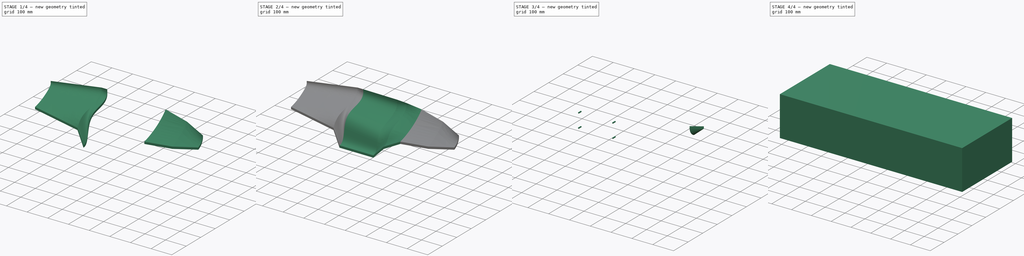
[diagram: build sequence overview — one tinted view per stage of 4, left to right]
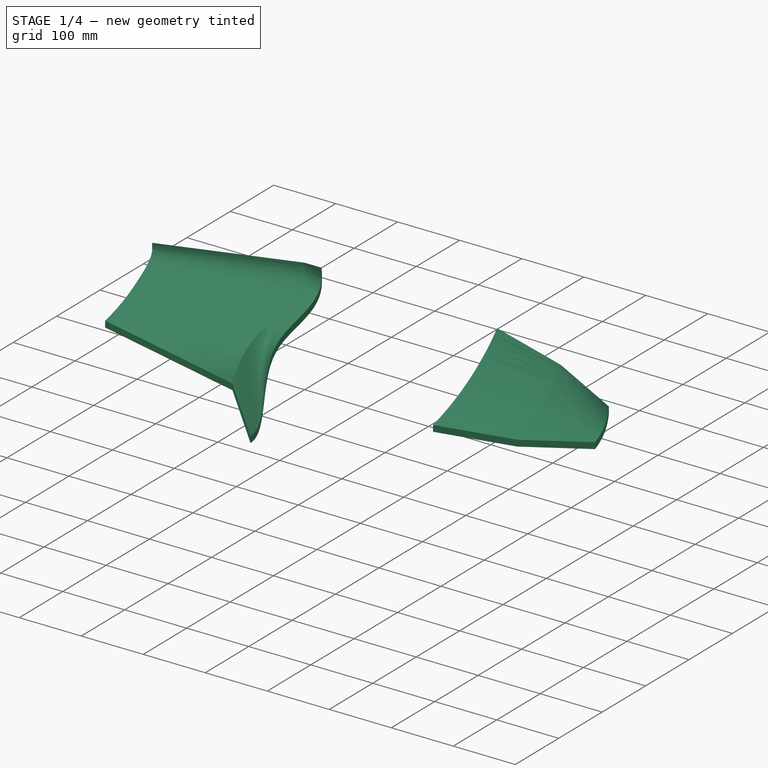
[diagram: stage 1 of 4 — iso view after this stage's code; geometry added in this stage tinted green]
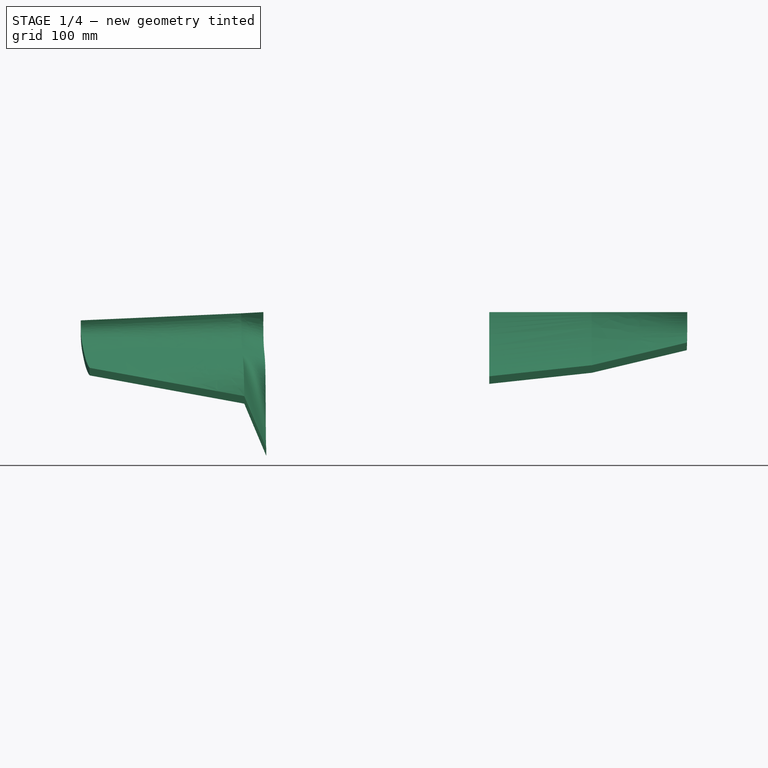
[diagram: stage 1 of 4 — front view after this stage's code; geometry added in this stage tinted green]
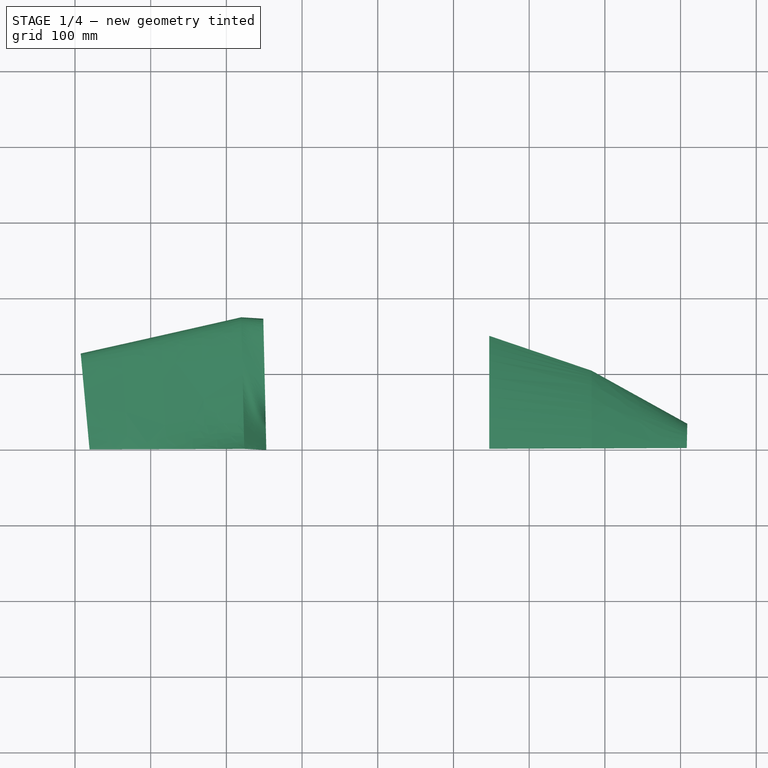
[diagram: stage 1 of 4 — top view after this stage's code; geometry added in this stage tinted green]
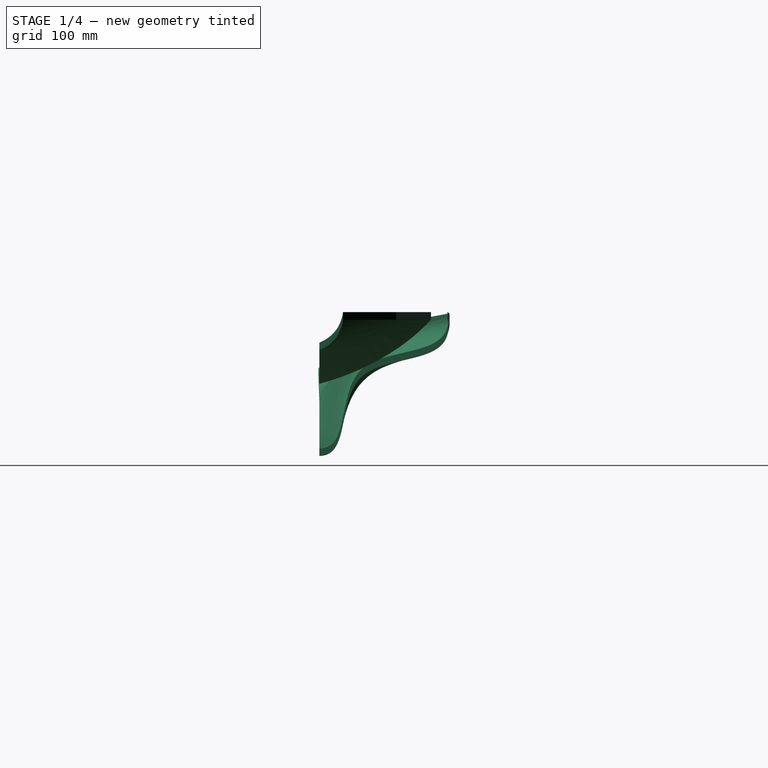
[diagram: stage 1 of 4 — right view after this stage's code; geometry added in this stage tinted green]
FCSTD DOCUMENT  (FreeCAD 0.19R24366 (Git))
Label: hulltest9
License: All rights reserved
LicenseURL: http://en.wikipedia.org/wiki/All_rights_reserved
objects: Sketcher::SketchObject×17, Part::FeaturePython×13, Part::Extrusion×12, Part::RuledSurface×9, App::FeaturePython×2, App::DocumentObjectGroup×2, Part::Mirroring×2, Image::ImagePlane×1, Part::Compound×1, PartDesign::Body×1, App::Part×1
note: 57 computed .brp shape members not serialized (recipe doc carries the construction recipe); baked Part::Feature solids carry a one-line shape summary decoded from their .brp

FEATURE [Part::Extrusion] Extrude005
  Base = -> Ruled_Surface004
  Dir = (0,0,-1)
  DirMode = 0
  FaceMakerClass = Part::FaceMakerBullseye
  LengthFwd = 10
  LengthRev = 0
  Solid = false
  Symmetric = false
FEATURE [Part::Extrusion] Extrude006
  Base = -> Ruled_Surface005
  Dir = (0,0,-1)
  DirMode = 0
  FaceMakerClass = Part::FaceMakerBullseye
  LengthFwd = 10
  LengthRev = 0
  Solid = false
  Symmetric = false
FEATURE [Part::Extrusion] Extrude007
  Base = -> Ruled_Surface006
  Dir = (0,0,-1)
  DirMode = 0
  FaceMakerClass = Part::FaceMakerBullseye
  LengthFwd = 10
  LengthRev = 0
  Solid = false
  Symmetric = false
FEATURE [Part::Extrusion] Extrude008
  Base = -> Ruled_Surface007
  Dir = (0,0,-1)
  DirMode = 0
  FaceMakerClass = Part::FaceMakerBullseye
  LengthFwd = 10
  LengthRev = 0
  Solid = false
  Symmetric = false
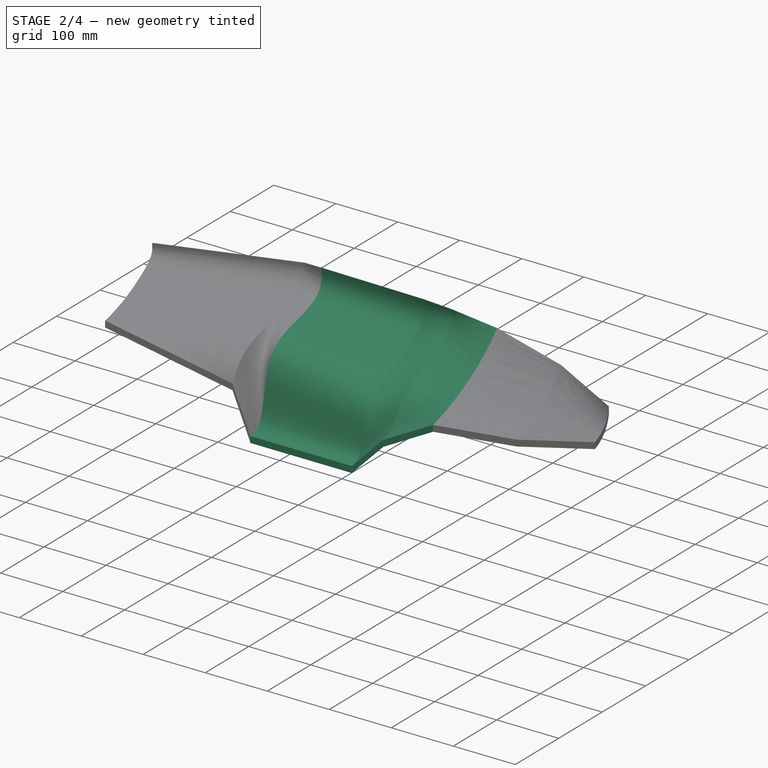
[diagram: stage 2 of 4 — iso view after this stage's code; geometry added in this stage tinted green]
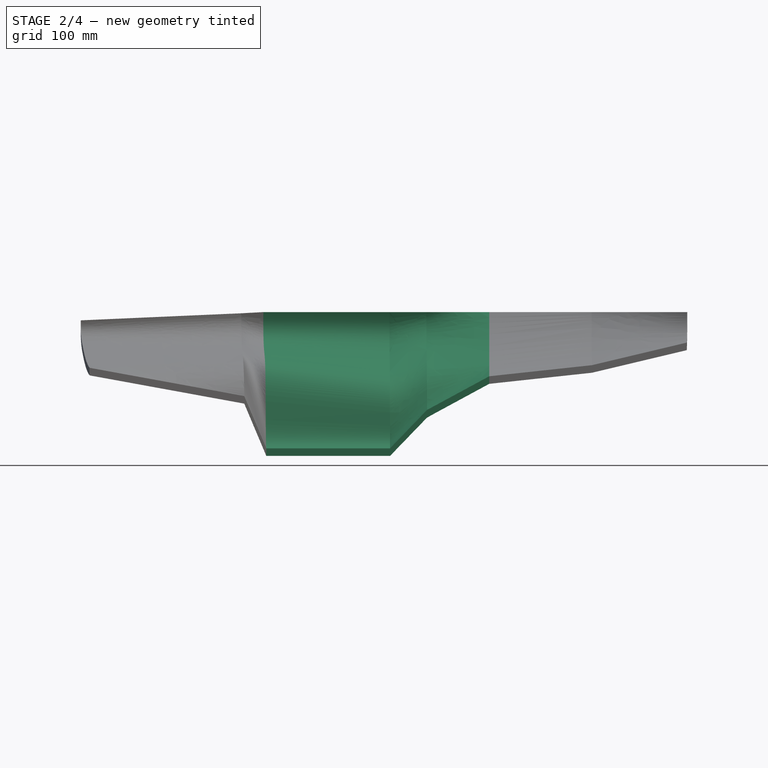
[diagram: stage 2 of 4 — front view after this stage's code; geometry added in this stage tinted green]
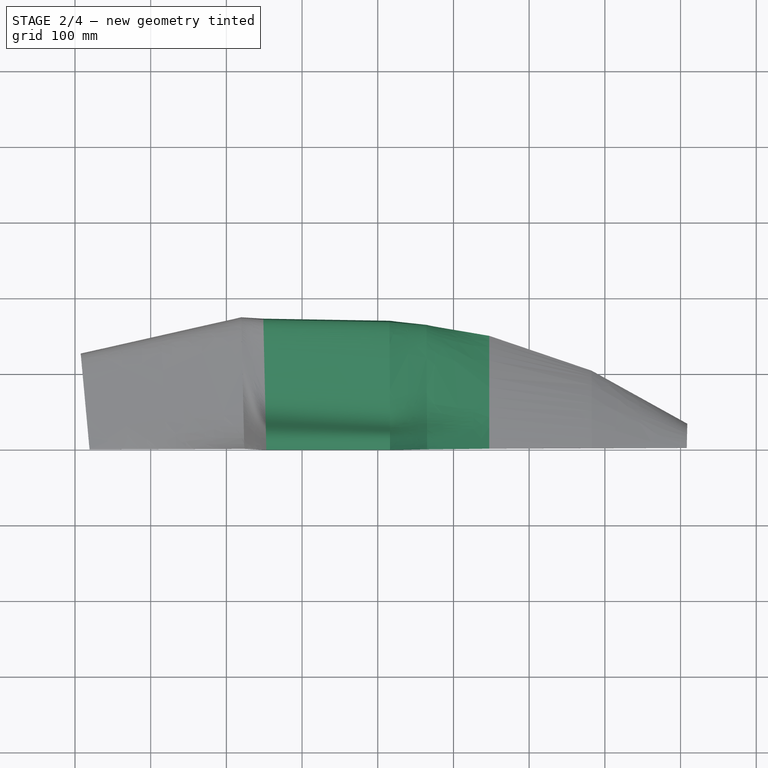
[diagram: stage 2 of 4 — top view after this stage's code; geometry added in this stage tinted green]
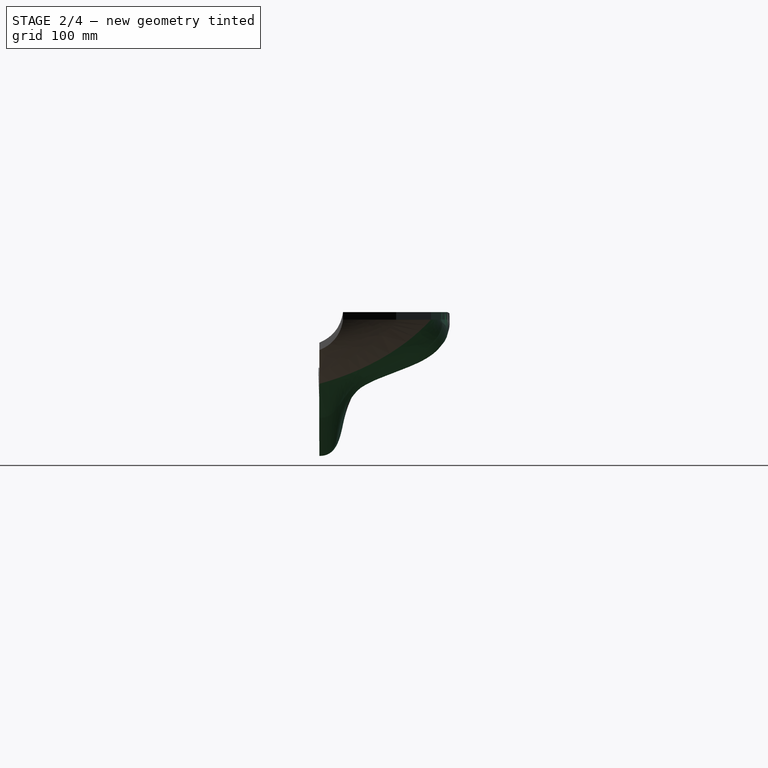
[diagram: stage 2 of 4 — right view after this stage's code; geometry added in this stage tinted green]
FEATURE [Sketcher::SketchObject] Sketch005  label="HullShapeVerticalStarboard"
  ExternalGeometry = -> [Sketch]
  FullyConstrained = false
  MapMode = 5
  Placement = pos=(0,-20,0) rot=(1,0,0;1.5708rad)
  sketch-geometry (23):
    g0: LineSegment StartX=556.206 StartY=4.4e-15 StartZ=0 EndX=556.206 EndY=-1.43051e-09 EndZ=0
    g1: LineSegment StartX=556.206 StartY=4.4e-15 StartZ=0 EndX=-306.723 EndY=-29.9514 EndZ=0
    g2: LineSegment StartX=-307.246 StartY=-80 StartZ=0 EndX=-107.499 EndY=-91.1171 EndZ=0
    g3: LineSegment StartX=-97.2983 StartY=-98.6422 StartZ=0 EndX=-72.0762 EndY=-166.629 EndZ=0
    g4: LineSegment StartX=-52.854 StartY=-180 StartZ=0 EndX=129.621 EndY=-180 EndZ=0
    g5: LineSegment StartX=141.45 StartY=-172.967 StartZ=0 EndX=181.223 EndY=-99.8143 EndZ=0
    g6: LineSegment StartX=194.826 StartY=-90.5596 StartZ=0 EndX=293.166 EndY=-78.5036 EndZ=0
    g7-g12: Circle x6 (B-spline internal-alignment scaffolding for g13; pole/knot coordinates omitted)
    g13: BSplineCurve PolesCount=6 KnotsCount=4 Degree=3 IsPeriodic=0
    g14-g17: GeomPoint x4 (B-spline internal-alignment scaffolding for g13; pole/knot coordinates omitted)
    g18: ArcOfCircle CenterX=-52.854 CenterY=-159.498 CenterZ=0 NormalX=0 NormalY=0 NormalZ=1 AngleXU=0 Radius=20.5024 StartAngle=3.49684 EndAngle=4.71239
    g19: ArcOfCircle CenterX=129.621 CenterY=-166.536 CenterZ=0 NormalX=0 NormalY=0 NormalZ=1 AngleXU=0 Radius=13.4644 StartAngle=4.71239 EndAngle=5.7852
    g20: ArcOfCircle CenterX=197.013 CenterY=-108.399 CenterZ=0 NormalX=0 NormalY=0 NormalZ=1 AngleXU=0 Radius=17.9734 StartAngle=1.69278 EndAngle=2.6436
    g21: ArcOfCircle CenterX=-108.142 CenterY=-102.665 CenterZ=0 NormalX=0 NormalY=0 NormalZ=1 AngleXU=0 Radius=11.5659 StartAngle=0.355247 EndAngle=1.5152
    g22: ArcOfCircle CenterX=-305.854 CenterY=-54.9875 CenterZ=0 NormalX=0 NormalY=0 NormalZ=1 AngleXU=0 Radius=25.0512 StartAngle=1.60549 EndAngle=4.65679
  constraints (20):
    c: Coincident(g0,g1)
    c: Coincident(g13,g6)
    c: Weight(g7) = 1
    c: Equal(g7, g8-g12) x5
    c: Coincident(g13,g0)
    c: InternalAlignment(g7-g12 -> g13) x6
    c: InternalAlignment(g14-g17 -> g13) x4
    c: Coincident(g-3,g1)
    c: Tangent(g3,g18) = -1.5708
    c: Tangent(g4,g18) = -1.5708
    c: DistanceY(g4,g-1) = 180
    c: Tangent(g4,g19) = -1.5708
    c: Tangent(g5,g19) = -1.5708
    c: Tangent(g5,g20) = 1.5708
    c: Tangent(g6,g20) = 1.5708
    c: Tangent(g2,g21) = 1.5708
    c: Tangent(g3,g21) = 1.5708
    c: Tangent(g2,g22) = -1.5708
    c: Tangent(g1,g22) = -1.5708
    c: DistanceY(g2,g-1) = 80
FEATURE [Part::FeaturePython] IsoCurve  # WARN: FeaturePython — macro-defined, semantics opaque (R4)
  Face = -> Extrude [Face4]
  Mode = 1
  NumberU = 19
  NumberV = 0
  Orientation = 0
  Parameter = 0
FEATURE [Part::FeaturePython] IsoCurve001  # WARN: FeaturePython — macro-defined, semantics opaque (R4)
  Face = -> Extrude [Face3]
  Mode = 1
  NumberU = 80
  NumberV = 0
  Orientation = 0
  Parameter = 0
FEATURE [Part::FeaturePython] Profile  # WARN: FeaturePython — macro-defined, semantics opaque (R4)
  Edge1 = -> Sketch [Edge2]
  Edge2 = -> Sketch [Edge1]
  MainAxis = (0,0,-1)
  Parameter1 = 0.359919
  Parameter2 = 603.435
FEATURE [Sketcher::SketchObject] Sketch006
  ExternalGeometry = -> [Sketch,Sketch003,Profile]
  FullyConstrained = false
  MapMode = 13
  Placement = pos=(-49.8638,112.818,-56.4242) rot=(0.586339,-0.572803,-0.572803;2.08096rad)
  Support = -> [Profile]
  sketch-geometry (9):
    g0-g4: Circle x5 (B-spline internal-alignment scaffolding for g5; pole/knot coordinates omitted)
    g5: BSplineCurve PolesCount=5 KnotsCount=3 Degree=3 IsPeriodic=0
    g6: GeomPoint X=112.739 Y=-123.576 Z=0
    g7: GeomPoint X=55.3327 Y=-17.7173 Z=0
    g8: GeomPoint X=-56.4242 Y=56.4242 Z=0
  constraints (8):
    c: Weight(g0) = 1
    c: Equal(g0, g1-g4) x4
    c: InternalAlignment(g0-g4 -> g5) x5
    c: InternalAlignment(g6,g5)
    c: InternalAlignment(g7,g5)
    c: InternalAlignment(g8,g5)
    c: Coincident(g5,g-4)
    c: Coincident(g-6,g5)
FEATURE [Part::FeaturePython] Profile001  # WARN: FeaturePython — macro-defined, semantics opaque (R4)
  Edge1 = -> Sketch [Edge2]
  Edge2 = -> Sketch [Edge1]
  MainAxis = (0,0,-1)
  Parameter1 = 0.5
  Parameter2 = 440
FEATURE [Part::FeaturePython] Profile002  # WARN: FeaturePython — macro-defined, semantics opaque (R4)
  Edge1 = -> Sketch [Edge2]
  Edge2 = -> Sketch [Edge1]
  MainAxis = (0,0,-1)
  Parameter1 = 0.55
  Parameter2 = 391
FEATURE [Part::FeaturePython] JoinCurve  # WARN: FeaturePython — macro-defined, semantics opaque (R4)
  Active = false
  ApproxTolerance = 0.001
  Continuity = 5
  CornerBreak = false
  DegreeMax = 5
  DegreeMin = 3
  Edges = -> [Sketch003]
  ForceClosed = false
  ForceContact = true
  Parametrization = 0
  Reverse = false
  Samples = 100
  StartOffset = 0
  Tolerance = 0.01
FEATURE [Sketcher::SketchObject] Sketch007
  ExternalGeometry = -> [Sketch,Sketch003,Profile001,JoinCurve]
  FullyConstrained = false
  MapMode = 13
  Placement = pos=(115.72,110.612,-55.3066) rot=(0.57904,-0.576504,-0.576504;2.09186rad)
  Support = -> [Profile001]
  sketch-geometry (9):
    g0-g4: Circle x5 (B-spline internal-alignment scaffolding for g5; pole/knot coordinates omitted)
    g5: BSplineCurve PolesCount=5 KnotsCount=3 Degree=3 IsPeriodic=0
    g6: GeomPoint X=110.455 Y=-124.728 Z=0
    g7: GeomPoint X=59.8835 Y=-37.9082 Z=0
    g8: GeomPoint X=-55.3066 Y=55.3066 Z=0
  constraints (8):
    c: Weight(g0) = 1
    c: Equal(g0, g1-g4) x4
    c: InternalAlignment(g0-g4 -> g5) x5
    c: InternalAlignment(g6,g5)
    c: InternalAlignment(g7,g5)
    c: InternalAlignment(g8,g5)
    c: Coincident(g-6,g5)
    c: Tangent(g5,g-4) = 1.5708
FEATURE [Part::FeaturePython] Profile003  # WARN: FeaturePython — macro-defined, semantics opaque (R4)
  Edge1 = -> Sketch [Edge2]
  Edge2 = -> Sketch [Edge1]
  MainAxis = (0,0,-1)
  Parameter1 = 0.822148
  Parameter2 = 173.36
FEATURE [Sketcher::SketchObject] Sketch009
  ExternalGeometry = -> [JoinCurve,Profile003]
  FullyConstrained = false
  MapMode = 5
  Placement = pos=(382.84,1.55253,0) rot=(0.578911,-0.576568,-0.576568;2.09206rad)
  Support = -> [Profile003]
  sketch-geometry (8):
    g0: GeomPoint X=1.34851 Y=-70.1648 Z=0
    g1-g4: Circle x4 (B-spline internal-alignment scaffolding for g5; pole/knot coordinates omitted)
    g5: BSplineCurve PolesCount=4 KnotsCount=2 Degree=3 IsPeriodic=0
    g6: GeomPoint X=1.34851 Y=-70.1648 Z=0
    g7: GeomPoint X=-99.9863 Y=-2.75e-14 Z=0
  constraints (9):
    c: Coincident(g5,g0)
    c: Weight(g1) = 1
    c: Equal(g1,g2)
    c: Equal(g1,g3)
    c: Equal(g1,g4)
    c: Coincident(g5,g-4)
    c: InternalAlignment(g1-g4 -> g5) x4
    c: InternalAlignment(g6,g5)
    c: InternalAlignment(g7,g5)
FEATURE [Sketcher::SketchObject] Sketch010
  ExternalGeometry = -> [Profile002,Sketch003]
  FullyConstrained = false
  MapMode = 5
  Placement = pos=(165.201,0.944997,0) rot=(0.579552,-0.576246,-0.576246;2.0911rad)
  Support = -> [Profile002]
  sketch-geometry (11):
    g0-g5: Circle x6 (B-spline internal-alignment scaffolding for g6; pole/knot coordinates omitted)
    g6: BSplineCurve PolesCount=6 KnotsCount=4 Degree=3 IsPeriodic=0
    g7-g10: GeomPoint x4 (B-spline internal-alignment scaffolding for g6; pole/knot coordinates omitted)
  constraints (6):
    c: Weight(g0) = 1
    c: Equal(g0, g1-g5) x5
    c: Coincident(g6,g-3)
    c: InternalAlignment(g0-g5 -> g6) x6
    c: InternalAlignment(g7-g10 -> g6) x4
    c: PointOnObject(g6,g-4)
FEATURE [Part::FeaturePython] Profile004  # WARN: FeaturePython — macro-defined, semantics opaque (R4)
  Edge1 = -> Sketch [Edge2]
  Edge2 = -> Sketch [Edge1]
  MainAxis = (0,0,-1)
  Parameter1 = 0.65
  Parameter2 = 309
FEATURE [Sketcher::SketchObject] Sketch011
  ExternalGeometry = -> [Profile004,Sketch003]
  FullyConstrained = false
  MapMode = 5
  Placement = pos=(247.206,0.0196502,0) rot=(0.577381,-0.577335,-0.577335;2.09435rad)
  Support = -> [Profile004]
  sketch-geometry (7):
    g0-g3: Circle x4 (B-spline internal-alignment scaffolding for g4; pole/knot coordinates omitted)
    g4: BSplineCurve PolesCount=4 KnotsCount=2 Degree=3 IsPeriodic=0
    g5: GeomPoint X=0.0192099 Y=-84.8161 Z=0
    g6: GeomPoint X=-147.538 Y=0 Z=0
  constraints (9):
    c: PointOnObject(g4,g-4)
    c: Weight(g0) = 1
    c: Equal(g0,g1)
    c: Equal(g0,g2)
    c: Equal(g0,g3)
    c: Coincident(g4,g-3)
    c: InternalAlignment(g0-g3 -> g4) x4
    c: InternalAlignment(g5,g4)
    c: InternalAlignment(g6,g4)
FEATURE [App::FeaturePython] Sweep_2_rails  # WARN: FeaturePython — macro-defined, semantics opaque (R4)
  Blending = 1
  Extend = false
  Parametrization = 0
  ProfileSamples = 20
  Profiles = -> [Sketch003,Sketch]
  RailSamples = 20
FEATURE [App::FeaturePython] Sweep_2_rails001  # WARN: FeaturePython — macro-defined, semantics opaque (R4)
  Blending = 1
  Extend = false
  Parametrization = 0
  ProfileSamples = 20
  Profiles = -> [Sketch003,Sketch]
  RailSamples = 20
FEATURE [Part::RuledSurface] Ruled_Surface
  Curve1 = -> Sketch [Edge2]
  Curve2 = -> JoinCurve [Edge1]
  Orientation = 0
FEATURE [Part::RuledSurface] Ruled_Surface001
  Curve1 = -> Sketch006 [Edge1]
  Curve2 = -> Sketch007 [Edge1]
  Orientation = 0
FEATURE [Part::RuledSurface] Ruled_Surface002
  Curve1 = -> Sketch007 [Edge1]
  Curve2 = -> Sketch010 [Edge1]
  Orientation = 0
FEATURE [Part::RuledSurface] Ruled_Surface003
  Curve1 = -> Ruled_Surface002 [Edge3]
  Curve2 = -> Sketch011 [Edge1]
  Orientation = 0
FEATURE [Part::RuledSurface] Ruled_Surface004
  Curve1 = -> Sketch009 [Edge1]
  Curve2 = -> Sketch011 [Edge1]
  Orientation = 0
FEATURE [Part::FeaturePython] Profile005  # WARN: FeaturePython — macro-defined, semantics opaque (R4)
  Edge1 = -> Sketch [Edge2]
  Edge2 = -> Sketch [Edge1]
  MainAxis = (0,0,-1)
  Parameter1 = 0.95
  Parameter2 = 48
FEATURE [Part::FeaturePython] Profile006  # WARN: FeaturePython — macro-defined, semantics opaque (R4)
  Edge1 = -> Sketch [Edge1]
  Edge2 = -> Sketch [Edge2]
  MainAxis = (0,0,-1)
  Parameter1 = 632.566
  Parameter2 = 0.337297
FEATURE [Part::FeaturePython] Profile007  # WARN: FeaturePython — macro-defined, semantics opaque (R4)
  Edge1 = -> Sketch [Edge2]
  MainAxis = (0,0,0)
  Parameter1 = 0
  Parameter2 = 0
FEATURE [Part::FeaturePython] Profile008  # WARN: FeaturePython — macro-defined, semantics opaque (R4)
  Edge1 = -> Sketch [Edge1]
  Edge2 = -> Sketch [Edge2]
  MainAxis = (0,0,-1)
  Parameter1 = 837.05
  Parameter2 = 0.0835447
FEATURE [Sketcher::SketchObject] Sketch012
  ExternalGeometry = -> [Sketch,JoinCurve]
  FullyConstrained = false
  MapMode = 5
  Placement = pos=(507.987,-10.5533,0) rot=(-0.569355,0.581306,0.581306;4.17676rad)
  Support = -> [Profile005]
  sketch-geometry (6):
    g0: Circle CenterX=-10.7284 CenterY=-40.3233 CenterZ=0 NormalX=0 NormalY=0 NormalZ=1 AngleXU=0 Radius=1
    g1: Circle CenterX=-37.7582 CenterY=-28.8952 CenterZ=0 NormalX=0 NormalY=0 NormalZ=1 AngleXU=0 Radius=1
    g2: Circle CenterX=-41.9941 CenterY=0 CenterZ=0 NormalX=0 NormalY=0 NormalZ=1 AngleXU=0 Radius=1
    g3: BSplineCurve PolesCount=3 KnotsCount=2 Degree=2 IsPeriodic=0
    g4: GeomPoint X=-10.7284 Y=-40.3233 Z=0
    g5: GeomPoint X=-41.9941 Y=0 Z=0
  constraints (9):
    c: Weight(g0) = 1
    c: Equal(g0,g1)
    c: Equal(g0,g2)
    c: InternalAlignment(g0,g3)
    c: InternalAlignment(g1,g3)
    c: InternalAlignment(g2,g3)
    c: InternalAlignment(g4,g3)
    c: InternalAlignment(g5,g3)
    c: PointOnObject(g3,g-1)
FEATURE [Part::RuledSurface] Ruled_Surface005
  Curve1 = -> Sketch012 [Edge1]
  Curve2 = -> Ruled_Surface004 [Edge1]
  Orientation = 0
FEATURE [Sketcher::SketchObject] Sketch013
  ExternalGeometry = -> [JoinCurve,Sketch,Ruled_Surface001]
  FullyConstrained = false
  MapMode = 5
  Placement = pos=(-76.3192,-1.75475,0) rot=(0.568502,0.581724,0.581724;2.10772rad)
  Support = -> [Profile006]
  sketch-geometry (9):
    g0-g4: Circle x5 (B-spline internal-alignment scaffolding for g5; pole/knot coordinates omitted)
    g5: BSplineCurve PolesCount=5 KnotsCount=3 Degree=3 IsPeriodic=0
    g6: GeomPoint X=2.01537 Y=-110.953 Z=0
    g7: GeomPoint X=104.241 Y=-55.5532 Z=0
    g8: GeomPoint X=173.72 Y=-1.6099 Z=0
  constraints (6):
    c: Weight(g0) = 1
    c: Equal(g0, g1-g4) x4
    c: InternalAlignment(g0-g4 -> g5) x5
    c: InternalAlignment(g6,g5)
    c: InternalAlignment(g7,g5)
    c: InternalAlignment(g8,g5)
FEATURE [Part::RuledSurface] Ruled_Surface006
  Curve1 = -> Ruled_Surface001 [Edge1]
  Curve2 = -> Sketch013 [Edge1]
  Orientation = 0
FEATURE [Sketcher::SketchObject] Sketch014
  ExternalGeometry = -> [Sketch,JoinCurve]
  FullyConstrained = false
  MapMode = 5
  Placement = pos=(-278.451,-25.8153,0) rot=(0.541784,0.594336,0.594336;2.14857rad)
  Support = -> [Profile008]
  sketch-geometry (9):
    g0-g4: Circle x5 (B-spline internal-alignment scaffolding for g5; pole/knot coordinates omitted)
    g5: BSplineCurve PolesCount=5 KnotsCount=3 Degree=3 IsPeriodic=0
    g6: GeomPoint X=24.8336 Y=-73.6262 Z=0
    g7: GeomPoint X=115.216 Y=-48.7604 Z=0
    g8: GeomPoint X=150.165 Y=-10.9394 Z=0
  constraints (6):
    c: Weight(g0) = 1
    c: Equal(g0, g1-g4) x4
    c: InternalAlignment(g0-g4 -> g5) x5
    c: InternalAlignment(g6,g5)
    c: InternalAlignment(g7,g5)
    c: InternalAlignment(g8,g5)
FEATURE [Part::RuledSurface] Ruled_Surface007
  Curve1 = -> Ruled_Surface006 [Edge3]
  Curve2 = -> Sketch014 [Edge1]
  Orientation = 0
FEATURE [App::DocumentObjectGroup] Group  label="HullShape"
  Group = -> [Ruled_Surface005,Ruled_Surface007,Ruled_Surface003]
FEATURE [Part::Extrusion] Extrude002
  Base = -> Ruled_Surface001
  Dir = (0,0,-1)
  DirMode = 0
  FaceMakerClass = Part::FaceMakerBullseye
  LengthFwd = 10
  LengthRev = 0
  Solid = false
  Symmetric = false
FEATURE [Part::Extrusion] Extrude003
  Base = -> Ruled_Surface002
  Dir = (0,0,-1)
  DirMode = 0
  FaceMakerClass = Part::FaceMakerBullseye
  LengthFwd = 10
  LengthRev = 0
  Solid = false
  Symmetric = false
FEATURE [Part::Extrusion] Extrude004
  Base = -> Ruled_Surface003
  Dir = (0,0,-1)
  DirMode = 0
  FaceMakerClass = Part::FaceMakerBullseye
  LengthFwd = 10
  LengthRev = 0
  Solid = false
  Symmetric = false
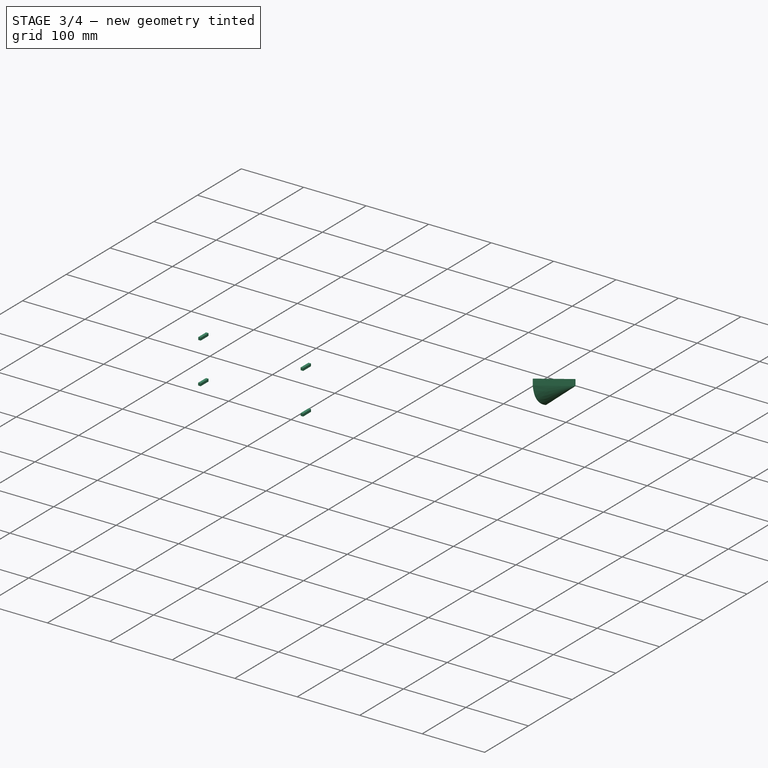
[diagram: stage 3 of 4 — iso view after this stage's code; geometry added in this stage tinted green]
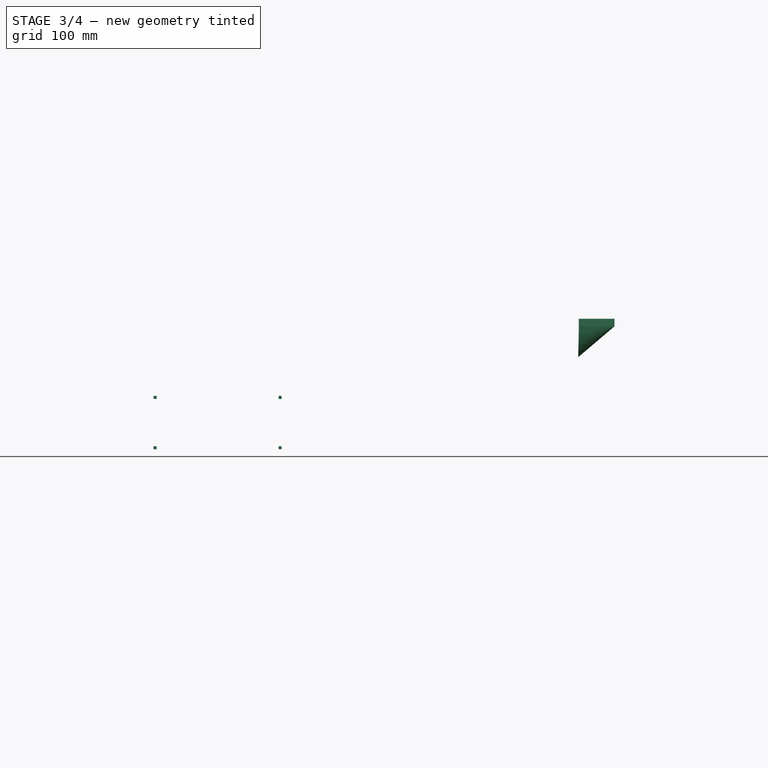
[diagram: stage 3 of 4 — front view after this stage's code; geometry added in this stage tinted green]
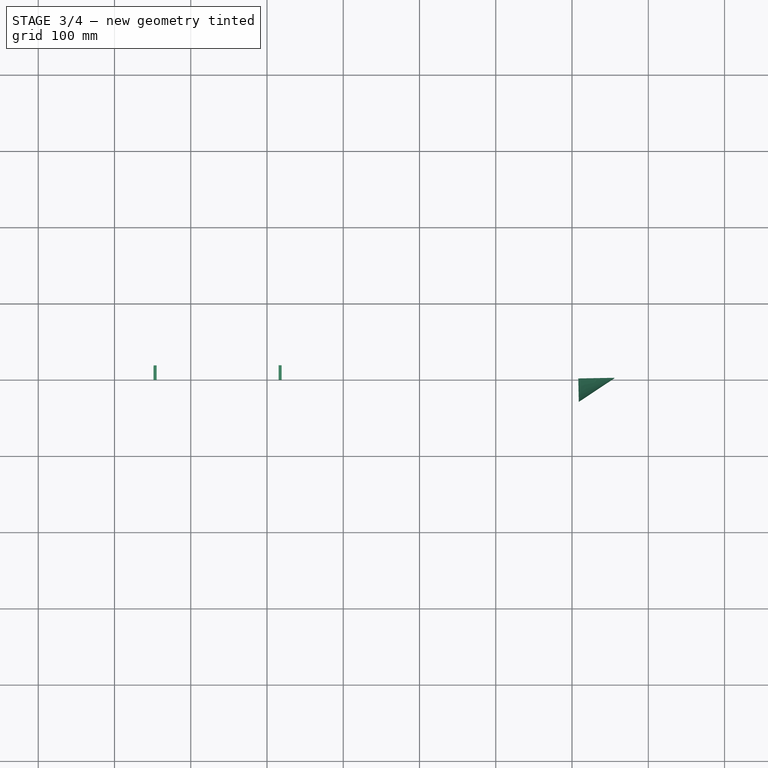
[diagram: stage 3 of 4 — top view after this stage's code; geometry added in this stage tinted green]
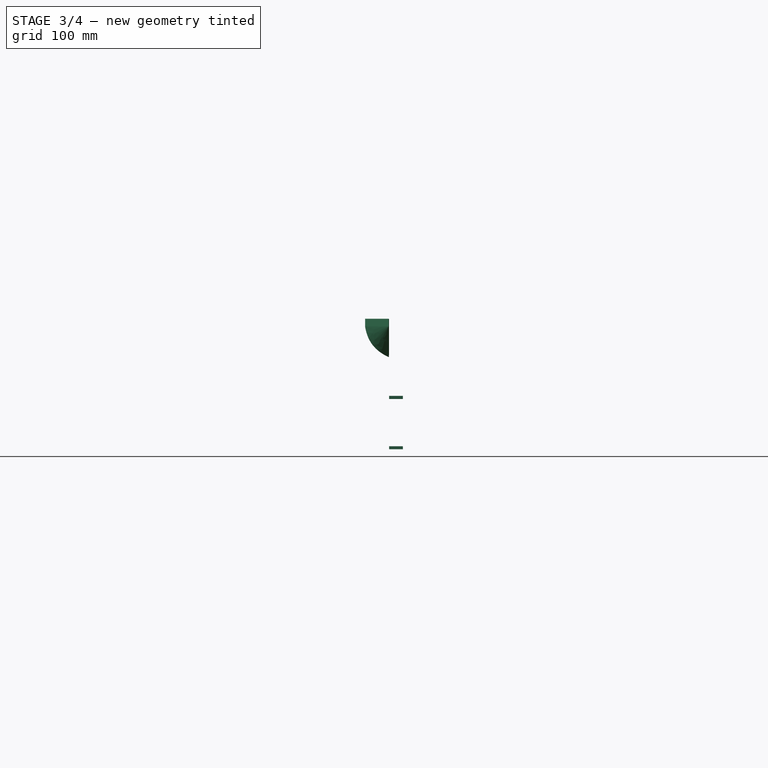
[diagram: stage 3 of 4 — right view after this stage's code; geometry added in this stage tinted green]
FEATURE [Part::Compound] Compound
  Links = -> [Extrude002,Extrude003,Extrude004,Extrude005,Extrude006,Extrude007,Extrude008]
FEATURE [Part::Extrusion] Extrude010
  Base = -> Part__Mirroring001
  Dir = (0,0,-1)
  DirMode = 0
  FaceMakerClass = Part::FaceMakerBullseye
  LengthFwd = 10
  LengthRev = 0
  Solid = false
  Symmetric = false
FEATURE [App::DocumentObjectGroup] Group001  label="HullShapeConstruction"
  Group = -> [Profile005,Sweep_2_rails,Sweep_2_rails001,Extrude010,Profile003,Profile004,Profile,Profile008,Profile002,Profile007,Profile006,Extrude009,Ruled_Surface,Sketch005,Profile001,Profile009,Part__Mirroring]
FEATURE [Sketcher::SketchObject] Sketch016
  FullyConstrained = false
  MapMode = 2
  Support = -> [XY_Plane]
  sketch-geometry (1):
    g0: Circle CenterX=-223.282 CenterY=0 CenterZ=0 NormalX=0 NormalY=0 NormalZ=1 AngleXU=0 Radius=1.5
  constraints (2):
    c: PointOnObject(g0,g-1)
    c: Radius(g0) = 1.5  'rudder_post_hole'
FEATURE [PartDesign::Body] Body
  Origin = -> Origin001
FEATURE [Sketcher::SketchObject] Sketch017  label="BatteryHolder"
  FullyConstrained = false
  MapMode = 45
  Placement = pos=(34.4871,0.133789,-185.017) rot=(-0.577376,-0.577423,-0.577252;2.0941rad)
  Support = -> [Compound]
  sketch-geometry (16):
    g0: LineSegment StartX=17.8035 StartY=-83.2729 StartZ=0 EndX=13.8035 EndY=-83.2729 EndZ=0
    g1: LineSegment StartX=13.8035 StartY=-83.2729 StartZ=0 EndX=13.8035 EndY=-79.2729 EndZ=0
    g2: LineSegment StartX=13.8035 StartY=-79.2729 StartZ=0 EndX=17.8035 EndY=-79.2729 EndZ=0
    g3: LineSegment StartX=17.8035 StartY=-79.2729 StartZ=0 EndX=17.8035 EndY=-83.2729 EndZ=0
    g4: LineSegment StartX=17.8035 StartY=80.7271 StartZ=0 EndX=13.8035 EndY=80.7271 EndZ=0
    g5: LineSegment StartX=13.8035 StartY=80.7271 StartZ=0 EndX=13.8035 EndY=84.7271 EndZ=0
    g6: LineSegment StartX=13.8035 StartY=84.7271 StartZ=0 EndX=17.8035 EndY=84.7271 EndZ=0
    g7: LineSegment StartX=17.8035 StartY=84.7271 StartZ=0 EndX=17.8035 EndY=80.7271 EndZ=0
    g8: LineSegment StartX=83.8035 StartY=-83.2729 StartZ=0 EndX=79.8035 EndY=-83.2729 EndZ=0
    g9: LineSegment StartX=79.8035 StartY=-83.2729 StartZ=0 EndX=79.8035 EndY=-79.2729 EndZ=0
    g10: LineSegment StartX=79.8035 StartY=-79.2729 StartZ=0 EndX=83.8035 EndY=-79.2729 EndZ=0
    g11: LineSegment StartX=83.8035 StartY=-79.2729 StartZ=0 EndX=83.8035 EndY=-83.2729 EndZ=0
    g12: LineSegment StartX=79.8035 StartY=80.7271 StartZ=0 EndX=83.8035 EndY=80.7271 EndZ=0
    g13: LineSegment StartX=83.8035 StartY=80.7271 StartZ=0 EndX=83.8035 EndY=84.7271 EndZ=0
    g14: LineSegment StartX=83.8035 StartY=84.7271 StartZ=0 EndX=79.8035 EndY=84.7271 EndZ=0
    g15: LineSegment StartX=79.8035 StartY=84.7271 StartZ=0 EndX=79.8035 EndY=80.7271 EndZ=0
  constraints (46):
    c: Coincident(g0,g1)
    c: Coincident(g1,g2)
    c: Coincident(g2,g3)
    c: Coincident(g3,g0)
    c: Horizontal(g0)
    c: Horizontal(g2)
    c: Vertical(g1)
    c: Vertical(g3)
    c: Coincident(g4,g5)
    c: Coincident(g5,g6)
    c: Coincident(g6,g7)
    c: Coincident(g7,g4)
    c: Horizontal(g4)
    c: Horizontal(g6)
    c: Vertical(g5)
    c: Vertical(g7)
    c: DistanceY(g5,g5) = 4
    c: DistanceX(g6,g6) = 4
    c: DistanceX(g2,g2) = 4
    c: DistanceY(g3,g3) = 4
    c: DistanceY(g1,g4) = 160
    c: Vertical(g4,g1)
    c: Coincident(g8,g9)
    c: Coincident(g9,g10)
    c: Coincident(g10,g11)
    c: Coincident(g11,g8)
    c: Horizontal(g8)
    c: Horizontal(g10)
    c: Vertical(g9)
    c: Vertical(g11)
    c: Coincident(g12,g13)
    c: Coincident(g13,g14)
    c: Coincident(g14,g15)
    c: Coincident(g15,g12)
    c: Horizontal(g12)
    c: Horizontal(g14)
    c: Vertical(g13)
    c: Vertical(g15)
    c: Equal(g15,g14)
    c: DistanceY(g15,g15) = 4
    c: Equal(g11,g10)
    c: DistanceY(g11,g11) = 4
    c: Horizontal(g10,g2)
    c: Horizontal(g7,g12)
    c: DistanceX(g4,g12) = 66
    c: Vertical(g12,g10)
FEATURE [Part::Extrusion] Extrude011  label="ExtrudeBatteryHolder"
  Base = -> Sketch017
  Dir = (-0.00029555,1,-3e-16)
  DirMode = 2
  FaceMakerClass = Part::FaceMakerBullseye
  LengthFwd = 0
  LengthRev = -18
  Solid = true
  Symmetric = false
FEATURE [App::Part] Part  label="Hull9"
  Group = -> [Extrude002,Extrude003,Sketch012,Extrude004,Ruled_Surface001,Sketch013,Sketch007,Profile001,Profile002,Sweep_2_rails,Sweep_2_rails001,JoinCurve,Profile007,Ruled_Surface005,Ruled_Surface006,Ruled_Surface,Part__Mirroring001,Ruled_Surface008,Sketch003,Extrude005,Sketch014,Ruled_Surface003,Extrude006,Sketch005,Ruled_Surface002,Extrude007,Extrude008,Ruled_Surface007,Sketch015,Sketch,Compound,Sketch010,+19 more]
  Origin = -> Origin
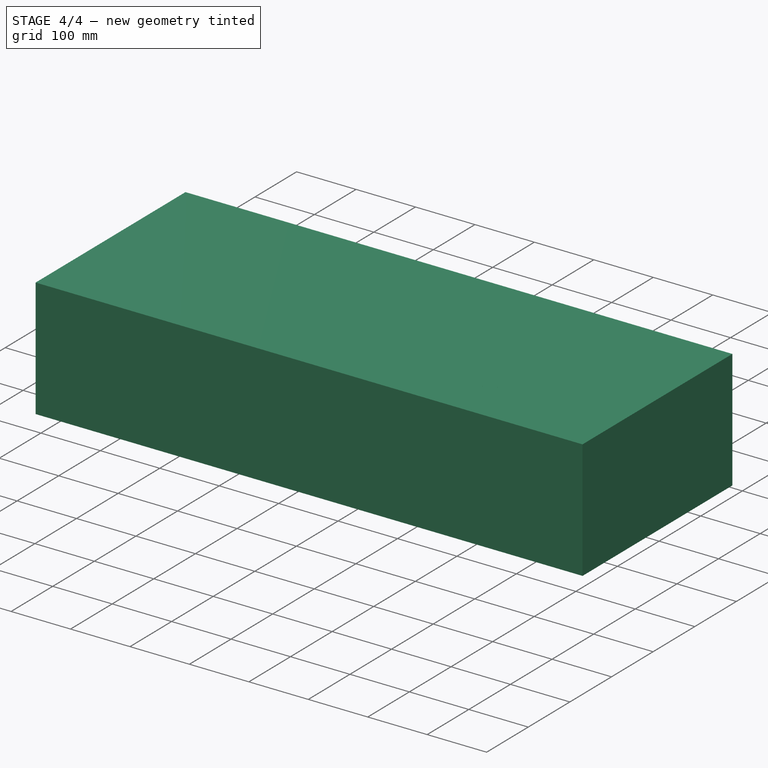
[diagram: stage 4 of 4 — iso view after this stage's code; geometry added in this stage tinted green]
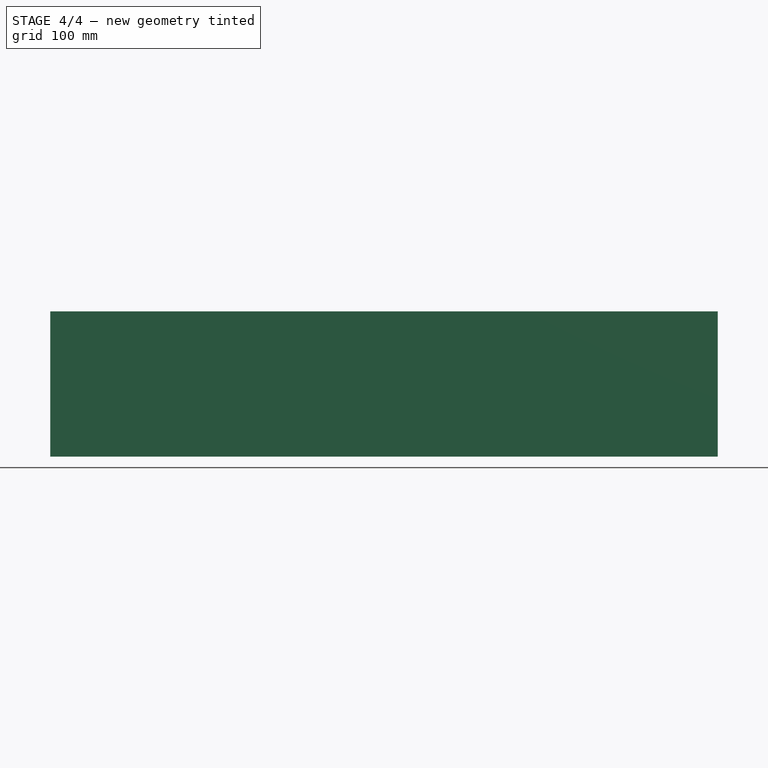
[diagram: stage 4 of 4 — front view after this stage's code; geometry added in this stage tinted green]
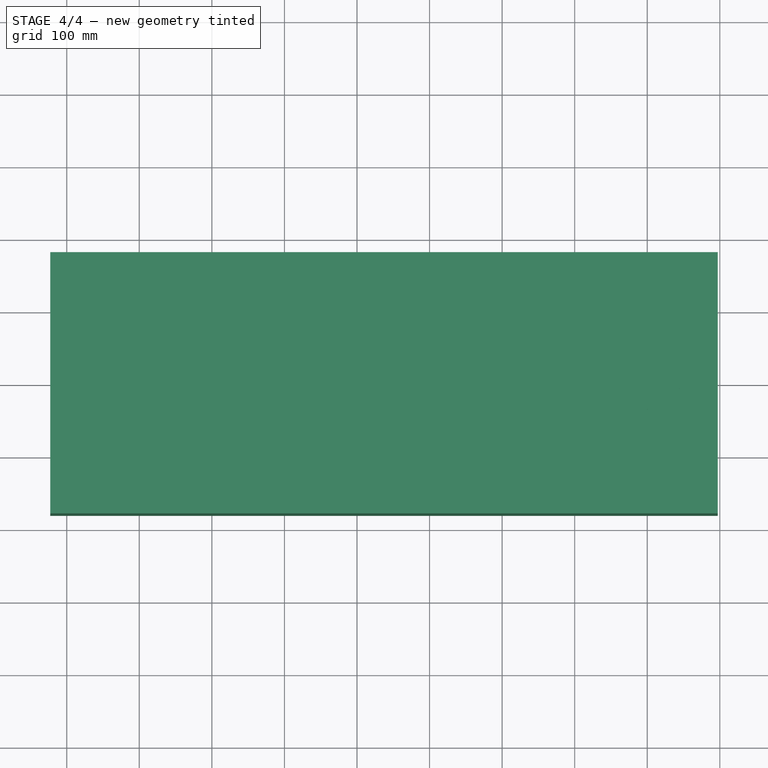
[diagram: stage 4 of 4 — top view after this stage's code; geometry added in this stage tinted green]
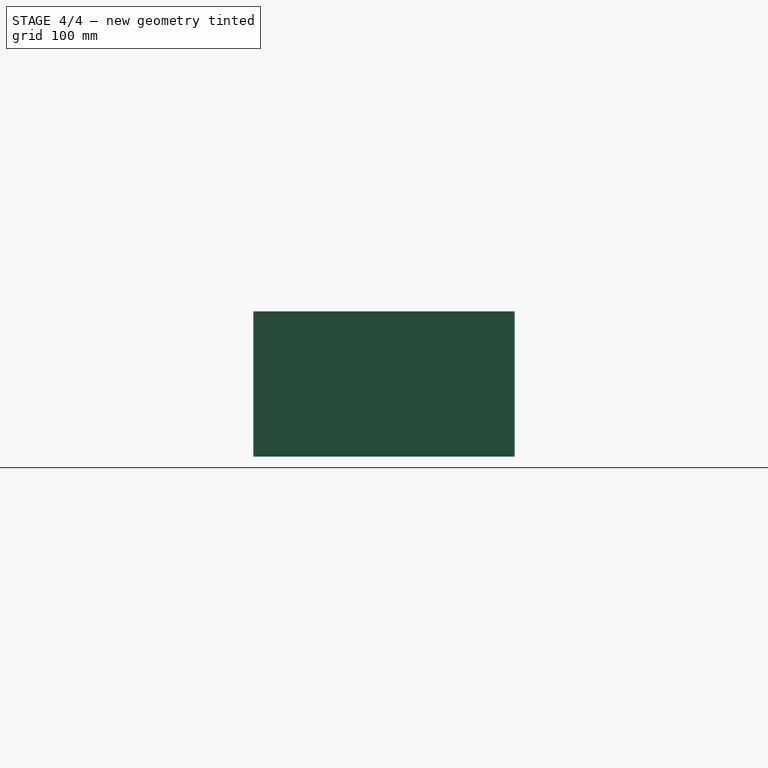
[diagram: stage 4 of 4 — right view after this stage's code; geometry added in this stage tinted green]
FEATURE [Image::ImagePlane] ImagePlane
  XSize = 937.122
  YSize = 403.932
FEATURE [Sketcher::SketchObject] Sketch  label="DeckShape"
  FullyConstrained = false
  sketch-geometry (19):
    g0-g8: Circle x9 (B-spline internal-alignment scaffolding for g9; pole/knot coordinates omitted)
    g9: BSplineCurve PolesCount=9 KnotsCount=7 Degree=3 IsPeriodic=0
    g10-g16: GeomPoint x7 (B-spline internal-alignment scaffolding for g9; pole/knot coordinates omitted)
    g17: BSplineCurve PolesCount=9 KnotsCount=7 Degree=3 IsPeriodic=0
    g18: LineSegment StartX=556.206 StartY=0 StartZ=0 EndX=-307.653 EndY=0 EndZ=0
  constraints (10):
    c: Weight(g0) = 1
    c: Equal(g0, g1-g8) x8
    c: InternalAlignment(g0-g8 -> g9) x9
    c: InternalAlignment(g10-g16 -> g9) x7
    c: PointOnObject(g9,g-1)
    c: PointOnObject(g9,g-1)
    c: Coincident(g17,g9)
    c: Coincident(g17,g9)
    c: Coincident(g18,g9)
    c: Coincident(g18,g9)
FEATURE [Sketcher::SketchObject] Sketch001  label="ExtrudedHullVertical"
  FullyConstrained = false
  sketch-geometry (4):
    g0: LineSegment StartX=-322.765 StartY=180 StartZ=0 EndX=597.235 EndY=180 EndZ=0
    g1: LineSegment StartX=597.235 StartY=180 StartZ=0 EndX=597.235 EndY=-180 EndZ=0
    g2: LineSegment StartX=597.235 StartY=-180 StartZ=0 EndX=-322.765 EndY=-180 EndZ=0
    g3: LineSegment StartX=-322.765 StartY=-180 StartZ=0 EndX=-322.765 EndY=180 EndZ=0
  constraints (10):
    c: Coincident(g0,g1)
    c: Coincident(g1,g2)
    c: Coincident(g2,g3)
    c: Coincident(g3,g0)
    c: Horizontal(g0)
    c: Horizontal(g2)
    c: Vertical(g1)
    c: DistanceY(g3,g3) = 360
    c: DistanceX(g0,g0) = 920
    c: Symmetric(g0,g2,g-1)
FEATURE [Sketcher::SketchObject] Sketch002  label="SolarPanelOutline"
  FullyConstrained = false
  sketch-geometry (4):
    g0: LineSegment StartX=-233.043 StartY=136.5 StartZ=0 EndX=159.957 EndY=136.5 EndZ=0
    g1: LineSegment StartX=159.957 StartY=136.5 StartZ=0 EndX=159.957 EndY=-136.5 EndZ=0
    g2: LineSegment StartX=159.957 StartY=-136.5 StartZ=0 EndX=-233.043 EndY=-136.5 EndZ=0
    g3: LineSegment StartX=-233.043 StartY=-136.5 StartZ=0 EndX=-233.043 EndY=136.5 EndZ=0
  constraints (10):
    c: Coincident(g0,g1)
    c: Coincident(g1,g2)
    c: Coincident(g2,g3)
    c: Coincident(g3,g0)
    c: Horizontal(g0)
    c: Horizontal(g2)
    c: Vertical(g1)
    c: DistanceX(g0,g0) = 393
    c: DistanceY(g3,g3) = 273
    c: Symmetric(g0,g2,g-1)
FEATURE [Part::Extrusion] Extrude
  Base = -> Sketch001
  Dir = (0,0,-1)
  DirMode = 0
  FaceMakerClass = Part::FaceMakerBullseye
  LengthFwd = 200
  LengthRev = 0
  Solid = true
  Symmetric = false
FEATURE [Sketcher::SketchObject] Sketch003  label="HullShapeVertical"
  ExternalGeometry = -> [Sketch]
  FullyConstrained = false
  MapMode = 5
  Placement = pos=(0,0,0) rot=(1,0,0;1.5708rad)
  sketch-geometry (23):
    g0: LineSegment StartX=556.206 StartY=0 StartZ=0 EndX=556.206 EndY=-1.43051e-09 EndZ=0
    g1: LineSegment StartX=-266.316 StartY=-80 StartZ=0 EndX=-103.903 EndY=-89.6659 EndZ=0
    g2: LineSegment StartX=-86.6216 StartY=-103.907 StartZ=0 EndX=-70.817 EndY=-165.349 EndZ=0
    g3: LineSegment StartX=-51.9251 StartY=-180 StartZ=0 EndX=129.611 EndY=-180.048 EndZ=0
    g4: LineSegment StartX=141.468 StartY=-172.998 StartZ=0 EndX=181.22 EndY=-99.8179 EndZ=0
    g5: LineSegment StartX=194.827 StartY=-90.5576 StartZ=0 EndX=293.166 EndY=-78.5034 EndZ=0
    g6-g11: Circle x6 (B-spline internal-alignment scaffolding for g12; pole/knot coordinates omitted)
    g12: BSplineCurve PolesCount=6 KnotsCount=4 Degree=3 IsPeriodic=0
    g13-g16: GeomPoint x4 (B-spline internal-alignment scaffolding for g12; pole/knot coordinates omitted)
    g17: ArcOfCircle CenterX=-51.92 CenterY=-160.488 CenterZ=0 NormalX=0 NormalY=0 NormalZ=1 AngleXU=0 Radius=19.5121 StartAngle=3.39336 EndAngle=4.71213
    g18: ArcOfCircle CenterX=129.615 CenterY=-166.559 CenterZ=0 NormalX=0 NormalY=0 NormalZ=1 AngleXU=0 Radius=13.489 StartAngle=4.71213 EndAngle=5.78557
    g19: ArcOfCircle CenterX=197.013 CenterY=-108.397 CenterZ=0 NormalX=0 NormalY=0 NormalZ=1 AngleXU=0 Radius=17.9729 StartAngle=1.69276 EndAngle=2.64397
    g20: ArcOfCircle CenterX=-105.033 CenterY=-108.643 CenterZ=0 NormalX=0 NormalY=0 NormalZ=1 AngleXU=0 Radius=19.0106 StartAngle=0.251771 EndAngle=1.51135
    g21: ArcOfCircle CenterX=-265.042 CenterY=-58.5905 CenterZ=0 NormalX=0 NormalY=0 NormalZ=1 AngleXU=0 Radius=21.4474 StartAngle=3.46984 EndAngle=4.65294
    g22: LineSegment StartX=-307.653 StartY=0 StartZ=0 EndX=-285.344 EndY=-65.5049 EndZ=0
  constraints (19):
    c: Coincident(g12,g5)
    c: Weight(g6) = 1
    c: Equal(g6, g7-g11) x5
    c: Coincident(g12,g0)
    c: InternalAlignment(g6-g11 -> g12) x6
    c: InternalAlignment(g13-g16 -> g12) x4
    c: Tangent(g2,g17) = -1.5708
    c: Tangent(g3,g17) = -1.5708
    c: DistanceY(g3,g-1) = 180
    c: Tangent(g3,g18) = -1.5708
    c: Tangent(g4,g18) = -1.5708
    c: Tangent(g4,g19) = 1.5708
    c: Tangent(g5,g19) = 1.5708
    c: Tangent(g1,g20) = 1.5708
    c: Tangent(g2,g20) = 1.5708
    c: Tangent(g1,g21) = -1.5708
    c: DistanceY(g1,g-1) = 80
    c: Coincident(g22,g-4)
    c: Tangent(g22,g21) = -1.5708
FEATURE [Sketcher::SketchObject] Sketch004
  FullyConstrained = false
  Placement = pos=(0,0,0) rot=(1,0,0;1.5708rad)
  sketch-geometry (4):
    g0: LineSegment StartX=-30.0981 StartY=-104.286 StartZ=0 EndX=129.902 EndY=-104.286 EndZ=0
    g1: LineSegment StartX=129.902 StartY=-104.286 StartZ=0 EndX=129.902 EndY=-168.286 EndZ=0
    g2: LineSegment StartX=129.902 StartY=-168.286 StartZ=0 EndX=-30.0981 EndY=-168.286 EndZ=0
    g3: LineSegment StartX=-30.0981 StartY=-168.286 StartZ=0 EndX=-30.0981 EndY=-104.286 EndZ=0
  constraints (10):
    c: Coincident(g0,g1)
    c: Coincident(g1,g2)
    c: Coincident(g2,g3)
    c: Coincident(g3,g0)
    c: Horizontal(g0)
    c: Horizontal(g2)
    c: Vertical(g1)
    c: Vertical(g3)
    c: DistanceX(g0,g0) = 160
    c: DistanceY(g3,g3) = 64
FEATURE [Part::Extrusion] Extrude001  label="battery"
  Base = -> Sketch004
  Dir = (0,-1,0)
  DirMode = 0
  FaceMakerClass = Part::FaceMakerBullseye
  LengthFwd = 33
  LengthRev = 0
  Solid = true
  Symmetric = false
FEATURE [Part::Mirroring] Part__Mirroring  label="Compound (Mirror #1)"
  Base = (0,0,0)
  Normal = (0,1,0)
  Source = -> Compound
FEATURE [Part::FeaturePython] Profile009  # WARN: FeaturePython — macro-defined, semantics opaque (R4)
  Edge1 = -> Sketch [Edge2]
  Edge2 = -> Sketch [Edge1]
  MainAxis = (-0.155715,0.404339,-0.901256)
  Parameter1 = 0.999334
  Parameter2 = 0.822998
FEATURE [Sketcher::SketchObject] Sketch015
  FullyConstrained = false
  MapMode = 5
  Placement = pos=(397.519,-195.642,-156.454) rot=(-0.302539,0.587557,0.750498;4.15704rad)
  Support = -> [Profile009]
  sketch-geometry (7):
    g0-g3: Circle x4 (B-spline internal-alignment scaffolding for g4; pole/knot coordinates omitted)
    g4: BSplineCurve PolesCount=4 KnotsCount=2 Degree=3 IsPeriodic=0
    g5: GeomPoint X=-215.179 Y=202.953 Z=0
    g6: GeomPoint X=-215.705 Y=203.484 Z=0
  constraints (7):
    c: Weight(g0) = 1
    c: Equal(g0,g1)
    c: Equal(g0,g2)
    c: Equal(g0,g3)
    c: InternalAlignment(g0-g3 -> g4) x4
    c: InternalAlignment(g5,g4)
    c: InternalAlignment(g6,g4)
FEATURE [Part::RuledSurface] Ruled_Surface008
  Curve1 = -> Sketch015 [Edge1]
  Curve2 = -> Compound [Edge51]
  Orientation = 0
FEATURE [Part::Mirroring] Part__Mirroring001  label="Ruled_Surface008 (Mirror #2)"
  Base = (0,0,0)
  Normal = (0,1,0)
  Source = -> Ruled_Surface008
FEATURE [Part::Extrusion] Extrude009
  Base = -> Ruled_Surface008
  Dir = (0,0,-1)
  DirMode = 0
  FaceMakerClass = Part::FaceMakerBullseye
  LengthFwd = 10
  LengthRev = 0
  Solid = false
  Symmetric = false
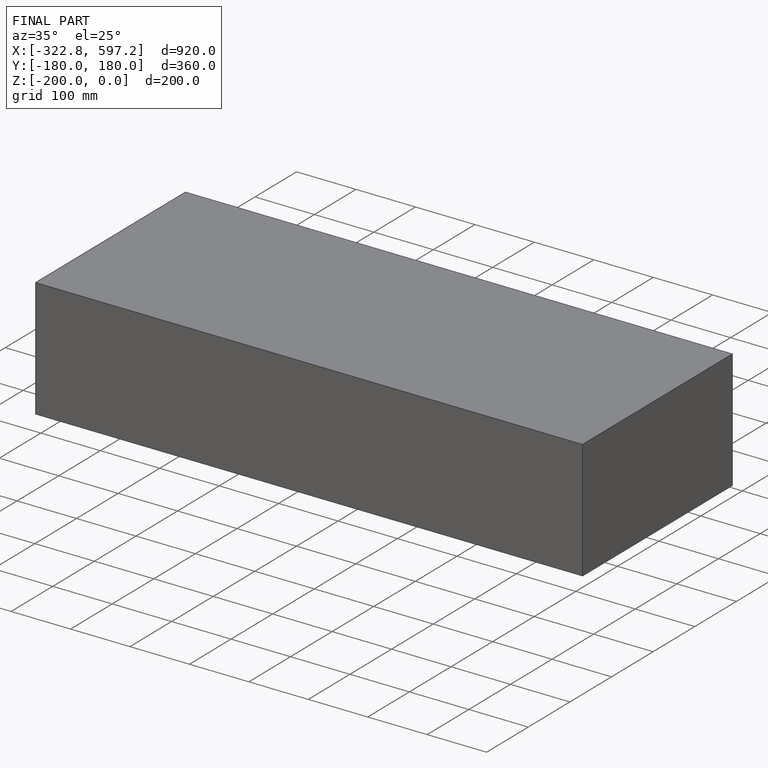
[diagram: finished part — iso view with bounding-box wireframe]
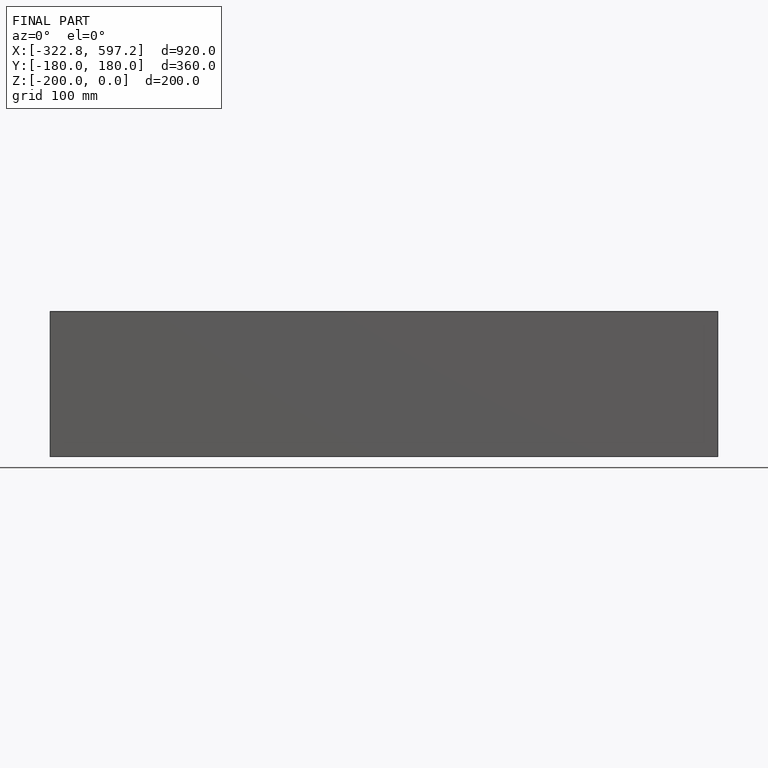
[diagram: finished part — front view with bounding-box wireframe]
